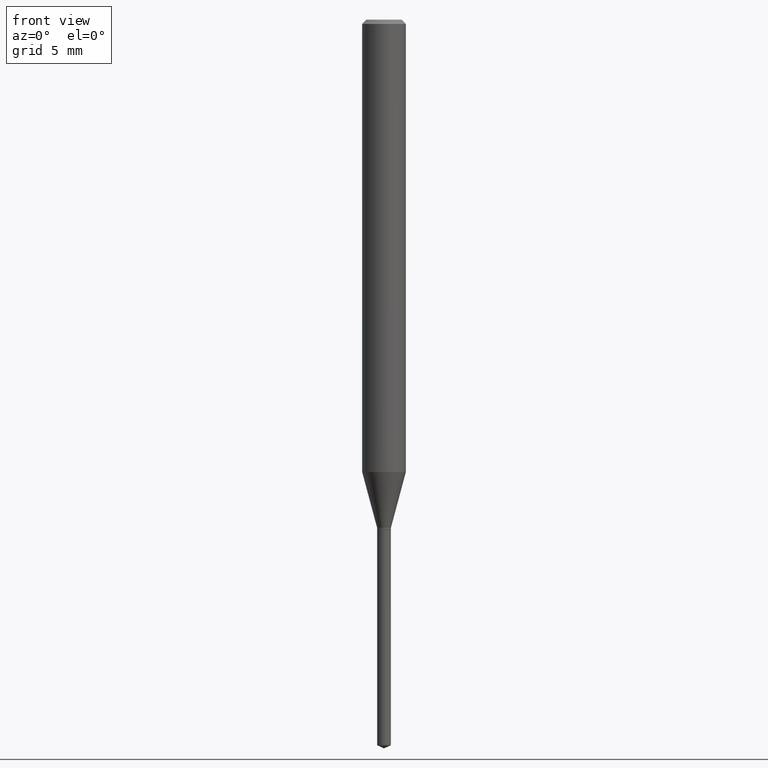
[diagram: clean part render]
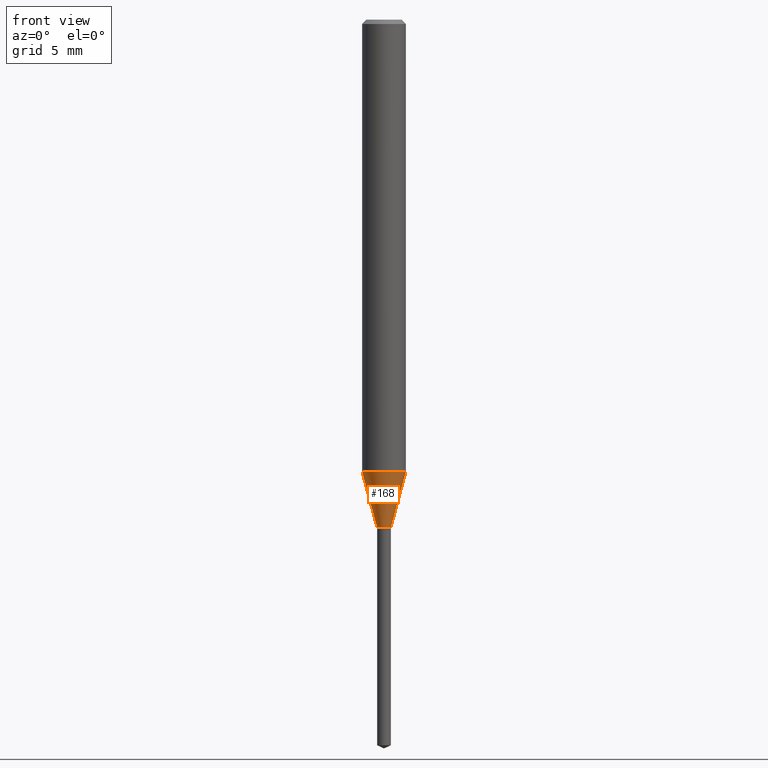
[diagram: same view with one face highlighted and labeled with its STEP entity id]
A machine part, front view. The second image highlights one B-rep face of the part: STEP entity #168.
In plain terms, the highlighted conical surface has half-angle 15 deg.
Its self-contained STEP definition (entity closure, byte-faithful):
#2 = CIRCLE ( 'NONE', #483, 0.01870000000000003604 ) ;
#11 = VERTEX_POINT ( 'NONE', #353 ) ;
#21 = ORIENTED_EDGE ( 'NONE', *, *, #222, .T. ) ;
#36 = AXIS2_PLACEMENT_3D ( 'NONE', #449, #413, #377 ) ;
#51 = CARTESIAN_POINT ( 'NONE',  ( 0.01870000000000003604, -4.923686984036602725E-15, -1.372799999999999798 ) ) ;
#55 = AXIS2_PLACEMENT_3D ( 'NONE', #396, #436, #64 ) ;
#64 = DIRECTION ( 'NONE',  ( 1.000000000000000000, -6.982962677686261977E-15, 0.000000000000000000 ) ) ;
#108 = DIRECTION ( 'NONE',  ( -2.445468806185136597E-29, 3.491481338843145583E-15, 1.000000000000000000 ) ) ;
#115 = VERTEX_POINT ( 'NONE', #342 ) ;
#129 = VECTOR ( 'NONE', #285, 39.37007874015747433 ) ;
#144 = FACE_OUTER_BOUND ( 'NONE', #357, .T. ) ;
#154 = VERTEX_POINT ( 'NONE', #249 ) ;
#159 = EDGE_CURVE ( 'NONE', #154, #11, #2, .T. ) ;
#168 = ADVANCED_FACE ( 'NONE', ( #144 ), #232, .T. ) ;
#173 = DIRECTION ( 'NONE',  ( -0.2588190451025213501, 5.211531920934551042E-15, 0.9659258262890682012 ) ) ;
#184 = CARTESIAN_POINT ( 'NONE',  ( -0.05905000000000014404, -3.847754031475296427E-15, -1.222211749914595691 ) ) ;
#191 = ORIENTED_EDGE ( 'NONE', *, *, #159, .T. ) ;
#222 = EDGE_CURVE ( 'NONE', #11, #115, #238, .T. ) ;
#226 = ORIENTED_EDGE ( 'NONE', *, *, #465, .F. ) ;
#232 = CONICAL_SURFACE ( 'NONE', #55, 0.01870000000000003604, 0.2617993877991500740 ) ;
#238 = LINE ( 'NONE', #51, #129 ) ;
#249 = CARTESIAN_POINT ( 'NONE',  ( -0.01870000000000003604, -4.669137367790782076E-15, -1.372799999999999798 ) ) ;
#261 = VERTEX_POINT ( 'NONE', #184 ) ;
#268 = VECTOR ( 'NONE', #173, 39.37007874015747433 ) ;
#284 = DIRECTION ( 'NONE',  ( 1.000000000000000000, -6.982962677686261977E-15, 0.000000000000000000 ) ) ;
#285 = DIRECTION ( 'NONE',  ( 0.2588190451025213501, 1.565188264969621968E-15, 0.9659258262890682012 ) ) ;
#326 = CARTESIAN_POINT ( 'NONE',  ( -0.01870000000000003604, -4.660234090376731224E-15, -1.372799999999999798 ) ) ;
#342 = CARTESIAN_POINT ( 'NONE',  ( 0.05905000000000014404, -4.679673463059010840E-15, -1.222211749914595691 ) ) ;
#353 = CARTESIAN_POINT ( 'NONE',  ( 0.01870000000000003604, -4.923686984036602725E-15, -1.372799999999999798 ) ) ;
#357 = EDGE_LOOP ( 'NONE', ( #395, #191, #21, #226 ) ) ;
#377 = DIRECTION ( 'NONE',  ( 1.000000000000000000, -6.982962677686272233E-15, 0.000000000000000000 ) ) ;
#383 = EDGE_CURVE ( 'NONE', #154, #261, #475, .T. ) ;
#395 = ORIENTED_EDGE ( 'NONE', *, *, #383, .F. ) ;
#396 = CARTESIAN_POINT ( 'NONE',  ( 3.357139577130955167E-29, -4.793105581963869525E-15, -1.372799999999999798 ) ) ;
#413 = DIRECTION ( 'NONE',  ( -2.445468806185136597E-29, 3.491481338843145583E-15, 1.000000000000000000 ) ) ;
#436 = DIRECTION ( 'NONE',  ( -2.445468806185136597E-29, 3.491481338843145583E-15, 1.000000000000000000 ) ) ;
#449 = CARTESIAN_POINT ( 'NONE',  ( 2.988880708969093313E-29, -4.267329516941636708E-15, -1.222211749914595691 ) ) ;
#465 = EDGE_CURVE ( 'NONE', #261, #115, #487, .T. ) ;
#475 = LINE ( 'NONE', #326, #268 ) ;
#481 = CARTESIAN_POINT ( 'NONE',  ( 3.357139577130955167E-29, -4.793105581963869525E-15, -1.372799999999999798 ) ) ;
#483 = AXIS2_PLACEMENT_3D ( 'NONE', #481, #108, #284 ) ;
#487 = CIRCLE ( 'NONE', #36, 0.05905000000000014404 ) ;